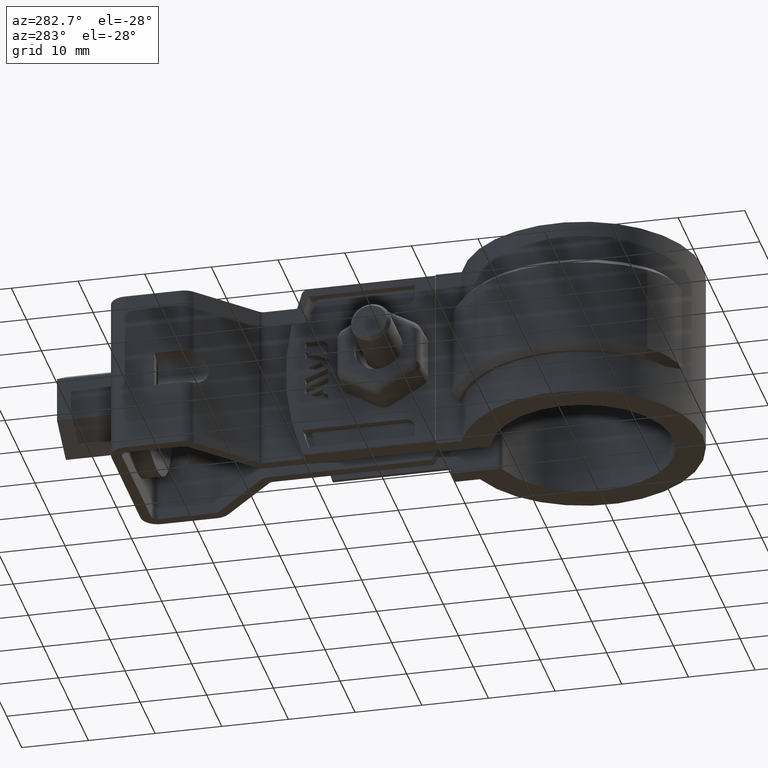
[diagram: clean part render]
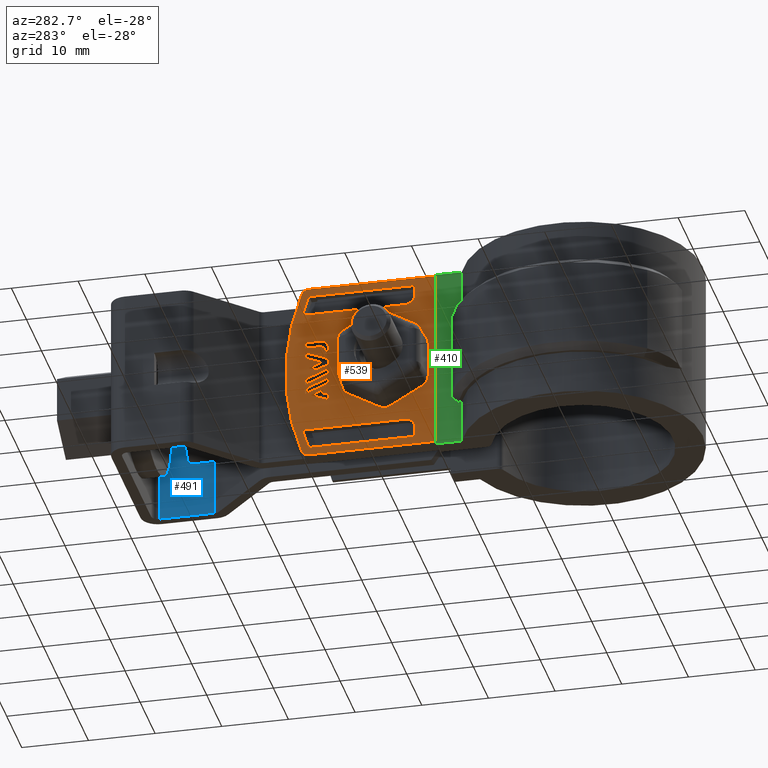
[diagram: same view with three faces highlighted in distinct colors, each labeled with its STEP entity id]
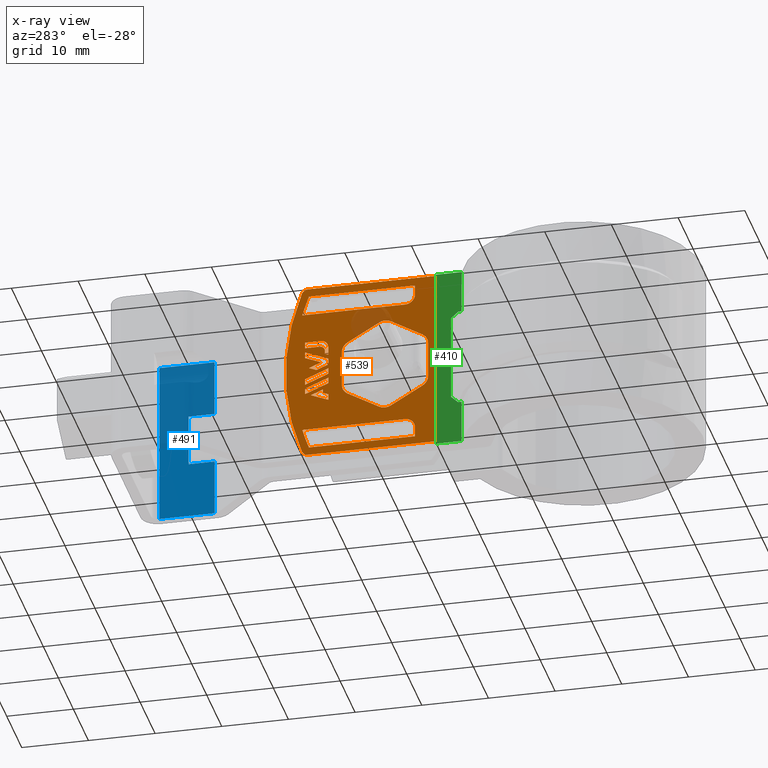
[diagram: x-ray of the same camera — body ghosted, the three highlighted faces saturated]
A machine part, auxiliary view with three faces highlighted in distinct colors.
The next image is the same camera in x-ray (body ghosted, the three faces saturated) — at least one of them is partly hidden behind the body in this view.
Their STEP definitions:

[orange] entity #539 — the highlighted planar face has unit normal (-1, 0, -0).
#539 = ADVANCED_FACE( '', ( #1070, #1071, #1072, #1073, #1074, #1075, #1076, #1077, #1078 ), #1079, .T. );
#1070 = FACE_BOUND( '', #2151, .T. );
#1071 = FACE_BOUND( '', #2152, .T. );
#1072 = FACE_BOUND( '', #2153, .T. );
#1073 = FACE_OUTER_BOUND( '', #2154, .T. );
#1074 = FACE_BOUND( '', #2155, .T. );
#1075 = FACE_BOUND( '', #2156, .T. );
#1076 = FACE_BOUND( '', #2157, .T. );
#1077 = FACE_BOUND( '', #2158, .T. );
#1078 = FACE_BOUND( '', #2159, .T. );
#1079 = PLANE( '', #2160 );
#2151 = EDGE_LOOP( '', ( #4816, #4817, #4818, #4819, #4820 ) );
#2152 = EDGE_LOOP( '', ( #4821, #4822, #4823, #4824 ) );
#2153 = EDGE_LOOP( '', ( #4825, #4826, #4827, #4828, #4829, #4830, #4831, #4832, #4833, #4834, #4835, #4836 ) );
#2154 = EDGE_LOOP( '', ( #4837, #4838, #4839, #4840, #4841, #4842 ) );
#2155 = EDGE_LOOP( '', ( #4843, #4844, #4845, #4846, #4847 ) );
#2156 = EDGE_LOOP( '', ( #4848, #4849, #4850, #4851, #4852 ) );
#2157 = EDGE_LOOP( '', ( #4853, #4854, #4855, #4856, #4857, #4858, #4859, #4860, #4861, #4862, #4863, #4864, #4865, #4866, #4867, #4868, #4869, #4870, #4871, #4872, #4873, #4874, #4875, #4876, #4877, #4878, #4879, #4880, #4881, #4882, #4883, #4884, #4885, #4886, #4887, #4888, #4889, #4890, #4891, #4892 ) );
#2158 = EDGE_LOOP( '', ( #4893, #4894, #4895, #4896, #4897, #4898, #4899 ) );
#2159 = EDGE_LOOP( '', ( #4900, #4901, #4902, #4903 ) );
#2160 = AXIS2_PLACEMENT_3D( '', #4904, #4905, #4906 );
#4816 = ORIENTED_EDGE( '', *, *, #6562, .T. );
#4817 = ORIENTED_EDGE( '', *, *, #6563, .T. );
#4818 = ORIENTED_EDGE( '', *, *, #6564, .T. );
#4819 = ORIENTED_EDGE( '', *, *, #6565, .T. );
#4820 = ORIENTED_EDGE( '', *, *, #6566, .T. );
#4821 = ORIENTED_EDGE( '', *, *, #6567, .T. );
#4822 = ORIENTED_EDGE( '', *, *, #6568, .T. );
#4823 = ORIENTED_EDGE( '', *, *, #6569, .T. );
#4824 = ORIENTED_EDGE( '', *, *, #6570, .T. );
#4825 = ORIENTED_EDGE( '', *, *, #6571, .F. );
#4826 = ORIENTED_EDGE( '', *, *, #6572, .F. );
#4827 = ORIENTED_EDGE( '', *, *, #6573, .F. );
#4828 = ORIENTED_EDGE( '', *, *, #6574, .F. );
#4829 = ORIENTED_EDGE( '', *, *, #6575, .F. );
#4830 = ORIENTED_EDGE( '', *, *, #6576, .F. );
#4831 = ORIENTED_EDGE( '', *, *, #6577, .F. );
#4832 = ORIENTED_EDGE( '', *, *, #6578, .F. );
#4833 = ORIENTED_EDGE( '', *, *, #6579, .F. );
#4834 = ORIENTED_EDGE( '', *, *, #6580, .F. );
#4835 = ORIENTED_EDGE( '', *, *, #6581, .F. );
#4836 = ORIENTED_EDGE( '', *, *, #6582, .F. );
#4837 = ORIENTED_EDGE( '', *, *, #6583, .T. );
#4838 = ORIENTED_EDGE( '', *, *, #6584, .T. );
#4839 = ORIENTED_EDGE( '', *, *, #6585, .T. );
#4840 = ORIENTED_EDGE( '', *, *, #6586, .T. );
#4841 = ORIENTED_EDGE( '', *, *, #6587, .T. );
#4842 = ORIENTED_EDGE( '', *, *, #6588, .T. );
#4843 = ORIENTED_EDGE( '', *, *, #6589, .F. );
#4844 = ORIENTED_EDGE( '', *, *, #6590, .T. );
#4845 = ORIENTED_EDGE( '', *, *, #6591, .T. );
#4846 = ORIENTED_EDGE( '', *, *, #6592, .T. );
#4847 = ORIENTED_EDGE( '', *, *, #6593, .F. );
#4848 = ORIENTED_EDGE( '', *, *, #6594, .F. );
#4849 = ORIENTED_EDGE( '', *, *, #6595, .F. );
#4850 = ORIENTED_EDGE( '', *, *, #6596, .T. );
#4851 = ORIENTED_EDGE( '', *, *, #6597, .T. );
#4852 = ORIENTED_EDGE( '', *, *, #6598, .T. );
#4853 = ORIENTED_EDGE( '', *, *, #6599, .T. );
#4854 = ORIENTED_EDGE( '', *, *, #6600, .T. );
#4855 = ORIENTED_EDGE( '', *, *, #6601, .T. );
#4856 = ORIENTED_EDGE( '', *, *, #6602, .T. );
#4857 = ORIENTED_EDGE( '', *, *, #6603, .T. );
#4858 = ORIENTED_EDGE( '', *, *, #6604, .T. );
#4859 = ORIENTED_EDGE( '', *, *, #6605, .T. );
#4860 = ORIENTED_EDGE( '', *, *, #6606, .T. );
#4861 = ORIENTED_EDGE( '', *, *, #6607, .T. );
#4862 = ORIENTED_EDGE( '', *, *, #6608, .T. );
#4863 = ORIENTED_EDGE( '', *, *, #6609, .T. );
#4864 = ORIENTED_EDGE( '', *, *, #6610, .T. );
#4865 = ORIENTED_EDGE( '', *, *, #6611, .T. );
#4866 = ORIENTED_EDGE( '', *, *, #6612, .T. );
#4867 = ORIENTED_EDGE( '', *, *, #6613, .T. );
#4868 = ORIENTED_EDGE( '', *, *, #6614, .T. );
#4869 = ORIENTED_EDGE( '', *, *, #6615, .T. );
#4870 = ORIENTED_EDGE( '', *, *, #6616, .T. );
#4871 = ORIENTED_EDGE( '', *, *, #6617, .T. );
#4872 = ORIENTED_EDGE( '', *, *, #6618, .T. );
#4873 = ORIENTED_EDGE( '', *, *, #6619, .T. );
#4874 = ORIENTED_EDGE( '', *, *, #6620, .T. );
#4875 = ORIENTED_EDGE( '', *, *, #6621, .T. );
#4876 = ORIENTED_EDGE( '', *, *, #6622, .T. );
#4877 = ORIENTED_EDGE( '', *, *, #6623, .T. );
#4878 = ORIENTED_EDGE( '', *, *, #6624, .T. );
#4879 = ORIENTED_EDGE( '', *, *, #6625, .T. );
#4880 = ORIENTED_EDGE( '', *, *, #6626, .T. );
#4881 = ORIENTED_EDGE( '', *, *, #6627, .T. );
#4882 = ORIENTED_EDGE( '', *, *, #6628, .T. );
#4883 = ORIENTED_EDGE( '', *, *, #6629, .T. );
#4884 = ORIENTED_EDGE( '', *, *, #6630, .T. );
#4885 = ORIENTED_EDGE( '', *, *, #6631, .T. );
#4886 = ORIENTED_EDGE( '', *, *, #6632, .T. );
#4887 = ORIENTED_EDGE( '', *, *, #6633, .T. );
#4888 = ORIENTED_EDGE( '', *, *, #6634, .T. );
#4889 = ORIENTED_EDGE( '', *, *, #6635, .T. );
#4890 = ORIENTED_EDGE( '', *, *, #6636, .T. );
#4891 = ORIENTED_EDGE( '', *, *, #6637, .T. );
#4892 = ORIENTED_EDGE( '', *, *, #6638, .T. );
#4893 = ORIENTED_EDGE( '', *, *, #6639, .T. );
#4894 = ORIENTED_EDGE( '', *, *, #6640, .T. );
#4895 = ORIENTED_EDGE( '', *, *, #6641, .T. );
#4896 = ORIENTED_EDGE( '', *, *, #6642, .T. );
#4897 = ORIENTED_EDGE( '', *, *, #6643, .T. );
#4898 = ORIENTED_EDGE( '', *, *, #6644, .T. );
#4899 = ORIENTED_EDGE( '', *, *, #6645, .T. );
#4900 = ORIENTED_EDGE( '', *, *, #6646, .T. );
#4901 = ORIENTED_EDGE( '', *, *, #6647, .T. );
#4902 = ORIENTED_EDGE( '', *, *, #6558, .T. );
#4903 = ORIENTED_EDGE( '', *, *, #6561, .T. );
#4904 = CARTESIAN_POINT( '', ( -6.30000000000003, 6.82194656581947, -12.5000000000001 ) );
#4905 = DIRECTION( '', ( -1.00000000000000, 7.94615700011737E-017, -6.23565794846549E-020 ) );
#4906 = DIRECTION( '', ( 7.94615700011737E-017, 1.00000000000000, 1.27307474615306E-016 ) );
#6558 = EDGE_CURVE( '', #7891, #7889, #7892, .T. );
#6561 = EDGE_CURVE( '', #7889, #7894, #7896, .T. );
#6562 = EDGE_CURVE( '', #7897, #7898, #7899, .T. );
#6563 = EDGE_CURVE( '', #7898, #7900, #7901, .T. );
#6564 = EDGE_CURVE( '', #7900, #7902, #7903, .T. );
#6565 = EDGE_CURVE( '', #7902, #7904, #7905, .T. );
#6566 = EDGE_CURVE( '', #7904, #7897, #7906, .T. );
#6567 = EDGE_CURVE( '', #7907, #7908, #7909, .T. );
#6568 = EDGE_CURVE( '', #7908, #7910, #7911, .T. );
#6569 = EDGE_CURVE( '', #7910, #7912, #7913, .T. );
#6570 = EDGE_CURVE( '', #7912, #7907, #7914, .T. );
#6571 = EDGE_CURVE( '', #7915, #7916, #7917, .F. );
#6572 = EDGE_CURVE( '', #7918, #7915, #7919, .T. );
#6573 = EDGE_CURVE( '', #7920, #7918, #7921, .F. );
#6574 = EDGE_CURVE( '', #7922, #7920, #7923, .T. );
#6575 = EDGE_CURVE( '', #7924, #7922, #7925, .F. );
#6576 = EDGE_CURVE( '', #7926, #7924, #7927, .T. );
#6577 = EDGE_CURVE( '', #7928, #7926, #7929, .F. );
#6578 = EDGE_CURVE( '', #7930, #7928, #7931, .T. );
#6579 = EDGE_CURVE( '', #7932, #7930, #7933, .F. );
#6580 = EDGE_CURVE( '', #7934, #7932, #7935, .T. );
#6581 = EDGE_CURVE( '', #7936, #7934, #7937, .F. );
#6582 = EDGE_CURVE( '', #7916, #7936, #7938, .T. );
#6583 = EDGE_CURVE( '', #7939, #7940, #7941, .T. );
#6584 = EDGE_CURVE( '', #7940, #7942, #7943, .T. );
#6585 = EDGE_CURVE( '', #7942, #7944, #7945, .T. );
#6586 = EDGE_CURVE( '', #7944, #7946, #7947, .T. );
#6587 = EDGE_CURVE( '', #7946, #7948, #7949, .T. );
#6588 = EDGE_CURVE( '', #7948, #7939, #7950, .T. );
#6589 = EDGE_CURVE( '', #7951, #7952, #7953, .T. );
#6590 = EDGE_CURVE( '', #7951, #7954, #7955, .T. );
#6591 = EDGE_CURVE( '', #7954, #7956, #7957, .T. );
#6592 = EDGE_CURVE( '', #7956, #7958, #7959, .T. );
#6593 = EDGE_CURVE( '', #7952, #7958, #7960, .T. );
#6594 = EDGE_CURVE( '', #7961, #7962, #7963, .T. );
#6595 = EDGE_CURVE( '', #7964, #7961, #7965, .T. );
#6596 = EDGE_CURVE( '', #7964, #7966, #7967, .T. );
#6597 = EDGE_CURVE( '', #7966, #7968, #7969, .T. );
#6598 = EDGE_CURVE( '', #7968, #7962, #7970, .T. );
#6599 = EDGE_CURVE( '', #7971, #7972, #7973, .T. );
#6600 = EDGE_CURVE( '', #7972, #7974, #7975, .T. );
#6601 = EDGE_CURVE( '', #7974, #7976, #7977, .T. );
#6602 = EDGE_CURVE( '', #7976, #7978, #7979, .T. );
#6603 = EDGE_CURVE( '', #7978, #7980, #7981, .T. );
#6604 = EDGE_CURVE( '', #7980, #7982, #7983, .T. );
#6605 = EDGE_CURVE( '', #7982, #7984, #7985, .T. );
#6606 = EDGE_CURVE( '', #7984, #7986, #7987, .T. );
#6607 = EDGE_CURVE( '', #7986, #7988, #7989, .T. );
#6608 = EDGE_CURVE( '', #7988, #7990, #7991, .T. );
#6609 = EDGE_CURVE( '', #7990, #7992, #7993, .T. );
#6610 = EDGE_CURVE( '', #7992, #7994, #7995, .T. );
#6611 = EDGE_CURVE( '', #7994, #7996, #7997, .T. );
#6612 = EDGE_CURVE( '', #7996, #7998, #7999, .T. );
#6613 = EDGE_CURVE( '', #7998, #8000, #8001, .T. );
#6614 = EDGE_CURVE( '', #8000, #8002, #8003, .T. );
#6615 = EDGE_CURVE( '', #8002, #8004, #8005, .T. );
#6616 = EDGE_CURVE( '', #8004, #8006, #8007, .T. );
#6617 = EDGE_CURVE( '', #8006, #8008, #8009, .T. );
#6618 = EDGE_CURVE( '', #8008, #8010, #8011, .T. );
#6619 = EDGE_CURVE( '', #8010, #8012, #8013, .T. );
#6620 = EDGE_CURVE( '', #8012, #8014, #8015, .T. );
#6621 = EDGE_CURVE( '', #8014, #8016, #8017, .T. );
#6622 = EDGE_CURVE( '', #8016, #8018, #8019, .T. );
#6623 = EDGE_CURVE( '', #8018, #8020, #8021, .T. );
#6624 = EDGE_CURVE( '', #8020, #8022, #8023, .T. );
#6625 = EDGE_CURVE( '', #8022, #8024, #8025, .T. );
#6626 = EDGE_CURVE( '', #8024, #8026, #8027, .T. );
#6627 = EDGE_CURVE( '', #8026, #8028, #8029, .T. );
#6628 = EDGE_CURVE( '', #8028, #8030, #8031, .T. );
#6629 = EDGE_CURVE( '', #8030, #8032, #8033, .T. );
#6630 = EDGE_CURVE( '', #8032, #8034, #8035, .T. );
#6631 = EDGE_CURVE( '', #8034, #8036, #8037, .T. );
#6632 = EDGE_CURVE( '', #8036, #8038, #8039, .T. );
#6633 = EDGE_CURVE( '', #8038, #8040, #8041, .T. );
#6634 = EDGE_CURVE( '', #8040, #8042, #8043, .T. );
#6635 = EDGE_CURVE( '', #8042, #8044, #8045, .T. );
#6636 = EDGE_CURVE( '', #8044, #8046, #8047, .T. );
#6637 = EDGE_CURVE( '', #8046, #8048, #8049, .T. );
#6638 = EDGE_CURVE( '', #8048, #7971, #8050, .F. );
#6639 = EDGE_CURVE( '', #8051, #8052, #8053, .T. );
#6640 = EDGE_CURVE( '', #8052, #8054, #8055, .T. );
#6641 = EDGE_CURVE( '', #8054, #8056, #8057, .T. );
#6642 = EDGE_CURVE( '', #8056, #8058, #8059, .T. );
#6643 = EDGE_CURVE( '', #8058, #8060, #8061, .T. );
#6644 = EDGE_CURVE( '', #8060, #8062, #8063, .T. );
#6645 = EDGE_CURVE( '', #8062, #8051, #8064, .T. );
#6646 = EDGE_CURVE( '', #7894, #8065, #8066, .T. );
#6647 = EDGE_CURVE( '', #8065, #7891, #8067, .T. );
#7889 = VERTEX_POINT( '', #11145 );
#7891 = VERTEX_POINT( '', #11148 );
#7892 = LINE( '', #11149, #11150 );
#7894 = VERTEX_POINT( '', #11153 );
#7896 = LINE( '', #11156, #11157 );
#7897 = VERTEX_POINT( '', #11158 );
#7898 = VERTEX_POINT( '', #11159 );
#7899 = LINE( '', #11160, #11161 );
#7900 = VERTEX_POINT( '', #11162 );
#7901 = LINE( '', #11163, #11164 );
#7902 = VERTEX_POINT( '', #11165 );
#7903 = LINE( '', #11166, #11167 );
#7904 = VERTEX_POINT( '', #11168 );
#7905 = LINE( '', #11169, #11170 );
#7906 = LINE( '', #11171, #11172 );
#7907 = VERTEX_POINT( '', #11173 );
#7908 = VERTEX_POINT( '', #11174 );
#7909 = LINE( '', #11175, #11176 );
#7910 = VERTEX_POINT( '', #11177 );
#7911 = LINE( '', #11178, #11179 );
#7912 = VERTEX_POINT( '', #11180 );
#7913 = LINE( '', #11181, #11182 );
#7914 = LINE( '', #11183, #11184 );
#7915 = VERTEX_POINT( '', #11185 );
#7916 = VERTEX_POINT( '', #11186 );
#7917 = LINE( '', #11187, #11188 );
#7918 = VERTEX_POINT( '', #11189 );
#7919 = CIRCLE( '', #11190, 1.77252045227181 );
#7920 = VERTEX_POINT( '', #11191 );
#7921 = LINE( '', #11192, #11193 );
#7922 = VERTEX_POINT( '', #11194 );
#7923 = CIRCLE( '', #11195, 1.77252045227181 );
#7924 = VERTEX_POINT( '', #11196 );
#7925 = LINE( '', #11197, #11198 );
#7926 = VERTEX_POINT( '', #11199 );
#7927 = CIRCLE( '', #11200, 1.77252045227182 );
#7928 = VERTEX_POINT( '', #11201 );
#7929 = LINE( '', #11202, #11203 );
#7930 = VERTEX_POINT( '', #11204 );
#7931 = CIRCLE( '', #11205, 1.77252045227182 );
#7932 = VERTEX_POINT( '', #11206 );
#7933 = LINE( '', #11207, #11208 );
#7934 = VERTEX_POINT( '', #11209 );
#7935 = CIRCLE( '', #11210, 1.77252045227181 );
#7936 = VERTEX_POINT( '', #11211 );
#7937 = LINE( '', #11212, #11213 );
#7938 = CIRCLE( '', #11214, 1.77252045227182 );
#7939 = VERTEX_POINT( '', #11215 );
#7940 = VERTEX_POINT( '', #11216 );
#7941 = CIRCLE( '', #11217, 1.00000000000000 );
#7942 = VERTEX_POINT( '', #11218 );
#7943 = LINE( '', #11219, #11220 );
#7944 = VERTEX_POINT( '', #11221 );
#7945 = LINE( '', #11222, #11223 );
#7946 = VERTEX_POINT( '', #11224 );
#7947 = LINE( '', #11225, #11226 );
#7948 = VERTEX_POINT( '', #11227 );
#7949 = CIRCLE( '', #11228, 1.00000000000000 );
#7950 = CIRCLE( '', #11229, 36.4000000000000 );
#7951 = VERTEX_POINT( '', #11230 );
#7952 = VERTEX_POINT( '', #11231 );
#7953 = CIRCLE( '', #11232, 35.2000000000000 );
#7954 = VERTEX_POINT( '', #11233 );
#7955 = LINE( '', #11234, #11235 );
#7956 = VERTEX_POINT( '', #11236 );
#7957 = CIRCLE( '', #11237, 1.50000000000000 );
#7958 = VERTEX_POINT( '', #11238 );
#7959 = LINE( '', #11239, #11240 );
#7960 = LINE( '', #11241, #11242 );
#7961 = VERTEX_POINT( '', #11243 );
#7962 = VERTEX_POINT( '', #11244 );
#7963 = CIRCLE( '', #11245, 35.2000000000000 );
#7964 = VERTEX_POINT( '', #11246 );
#7965 = LINE( '', #11247, #11248 );
#7966 = VERTEX_POINT( '', #11249 );
#7967 = LINE( '', #11250, #11251 );
#7968 = VERTEX_POINT( '', #11252 );
#7969 = CIRCLE( '', #11253, 1.50000000000000 );
#7970 = LINE( '', #11254, #11255 );
#7971 = VERTEX_POINT( '', #11256 );
#7972 = VERTEX_POINT( '', #11257 );
#7973 = LINE( '', #11258, #11259 );
#7974 = VERTEX_POINT( '', #11260 );
#7975 = LINE( '', #11261, #11262 );
#7976 = VERTEX_POINT( '', #11263 );
#7977 = LINE( '', #11264, #11265 );
#7978 = VERTEX_POINT( '', #11266 );
#7979 = LINE( '', #11267, #11268 );
#7980 = VERTEX_POINT( '', #11269 );
#7981 = LINE( '', #11270, #11271 );
#7982 = VERTEX_POINT( '', #11272 );
#7983 = LINE( '', #11273, #11274 );
#7984 = VERTEX_POINT( '', #11275 );
#7985 = LINE( '', #11276, #11277 );
#7986 = VERTEX_POINT( '', #11278 );
#7987 = LINE( '', #11279, #11280 );
#7988 = VERTEX_POINT( '', #11281 );
#7989 = LINE( '', #11282, #11283 );
#7990 = VERTEX_POINT( '', #11284 );
#7991 = LINE( '', #11285, #11286 );
#7992 = VERTEX_POINT( '', #11287 );
#7993 = LINE( '', #11288, #11289 );
#7994 = VERTEX_POINT( '', #11290 );
#7995 = LINE( '', #11291, #11292 );
#7996 = VERTEX_POINT( '', #11293 );
#7997 = LINE( '', #11294, #11295 );
#7998 = VERTEX_POINT( '', #11296 );
#7999 = LINE( '', #11297, #11298 );
#8000 = VERTEX_POINT( '', #11299 );
#8001 = LINE( '', #11300, #11301 );
#8002 = VERTEX_POINT( '', #11302 );
#8003 = LINE( '', #11303, #11304 );
#8004 = VERTEX_POINT( '', #11305 );
#8005 = LINE( '', #11306, #11307 );
#8006 = VERTEX_POINT( '', #11308 );
#8007 = LINE( '', #11309, #11310 );
#8008 = VERTEX_POINT( '', #11311 );
#8009 = LINE( '', #11312, #11313 );
#8010 = VERTEX_POINT( '', #11314 );
#8011 = LINE( '', #11315, #11316 );
#8012 = VERTEX_POINT( '', #11317 );
#8013 = LINE( '', #11318, #11319 );
#8014 = VERTEX_POINT( '', #11320 );
#8015 = LINE( '', #11321, #11322 );
#8016 = VERTEX_POINT( '', #11323 );
#8017 = LINE( '', #11324, #11325 );
#8018 = VERTEX_POINT( '', #11326 );
#8019 = LINE( '', #11327, #11328 );
#8020 = VERTEX_POINT( '', #11329 );
#8021 = LINE( '', #11330, #11331 );
#8022 = VERTEX_POINT( '', #11332 );
#8023 = LINE( '', #11333, #11334 );
#8024 = VERTEX_POINT( '', #11335 );
#8025 = LINE( '', #11336, #11337 );
#8026 = VERTEX_POINT( '', #11338 );
#8027 = LINE( '', #11339, #11340 );
#8028 = VERTEX_POINT( '', #11341 );
#8029 = LINE( '', #11342, #11343 );
#8030 = VERTEX_POINT( '', #11344 );
#8031 = LINE( '', #11345, #11346 );
#8032 = VERTEX_POINT( '', #11347 );
#8033 = LINE( '', #11348, #11349 );
#8034 = VERTEX_POINT( '', #11350 );
#8035 = LINE( '', #11351, #11352 );
#8036 = VERTEX_POINT( '', #11353 );
#8037 = LINE( '', #11354, #11355 );
#8038 = VERTEX_POINT( '', #11356 );
#8039 = LINE( '', #11357, #11358 );
#8040 = VERTEX_POINT( '', #11359 );
#8041 = LINE( '', #11360, #11361 );
#8042 = VERTEX_POINT( '', #11362 );
#8043 = LINE( '', #11363, #11364 );
#8044 = VERTEX_POINT( '', #11365 );
#8045 = LINE( '', #11366, #11367 );
#8046 = VERTEX_POINT( '', #11368 );
#8047 = LINE( '', #11369, #11370 );
#8048 = VERTEX_POINT( '', #11371 );
#8049 = LINE( '', #11372, #11373 );
#8050 = CIRCLE( '', #11374, 1.16712912069193 );
#8051 = VERTEX_POINT( '', #11375 );
#8052 = VERTEX_POINT( '', #11376 );
#8053 = LINE( '', #11377, #11378 );
#8054 = VERTEX_POINT( '', #11379 );
#8055 = LINE( '', #11380, #11381 );
#8056 = VERTEX_POINT( '', #11382 );
#8057 = LINE( '', #11383, #11384 );
#8058 = VERTEX_POINT( '', #11385 );
#8059 = LINE( '', #11386, #11387 );
#8060 = VERTEX_POINT( '', #11388 );
#8061 = LINE( '', #11389, #11390 );
#8062 = VERTEX_POINT( '', #11391 );
#8063 = LINE( '', #11392, #11393 );
#8064 = LINE( '', #11394, #11395 );
#8065 = VERTEX_POINT( '', #11396 );
#8066 = LINE( '', #11397, #11398 );
#8067 = LINE( '', #11399, #11400 );
#11145 = CARTESIAN_POINT( '', ( -6.30000000000003, 40.3240775025942, -16.0992186100001 ) );
#11148 = CARTESIAN_POINT( '', ( -6.30000000000003, 36.8256386785941, -14.6858050040001 ) );
#11149 = CARTESIAN_POINT( '', ( -6.30000000000003, 10.2729492232332, -3.95818207269807 ) );
#11150 = VECTOR( '', #12717, 1000.00000000000 );
#11153 = CARTESIAN_POINT( '', ( -6.30000000000003, 40.3240775025942, -15.1954619120001 ) );
#11156 = CARTESIAN_POINT( '', ( -6.30000000000003, 40.3240775025942, -12.5000000000001 ) );
#11157 = VECTOR( '', #12720, 1000.00000000000 );
#11158 = CARTESIAN_POINT( '', ( -6.30000000000003, 37.6336445825941, -15.6427310000001 ) );
#11159 = CARTESIAN_POINT( '', ( -6.30000000000003, 37.6336445825941, -16.2049013520001 ) );
#11160 = CARTESIAN_POINT( '', ( -6.30000000000003, 37.6336445825941, -12.5000000000001 ) );
#11161 = VECTOR( '', #12721, 1000.00000000000 );
#11162 = CARTESIAN_POINT( '', ( -6.30000000000003, 36.8256386785941, -16.5315944440001 ) );
#11163 = CARTESIAN_POINT( '', ( -6.30000000000003, 12.4386584504484, -26.3917426630107 ) );
#11164 = VECTOR( '', #12722, 1000.00000000000 );
#11165 = CARTESIAN_POINT( '', ( -6.30000000000003, 36.8256386785941, -17.4353519200001 ) );
#11166 = CARTESIAN_POINT( '', ( -6.30000000000003, 36.8256386785941, -12.5000000000001 ) );
#11167 = VECTOR( '', #12723, 1000.00000000000 );
#11168 = CARTESIAN_POINT( '', ( -6.30000000000003, 39.4486757925941, -16.3757128080001 ) );
#11169 = CARTESIAN_POINT( '', ( -6.30000000000003, 12.7454668365893, -27.1631181690099 ) );
#11170 = VECTOR( '', #12724, 1000.00000000000 );
#11171 = CARTESIAN_POINT( '', ( -6.30000000000003, 10.0511252232941, -4.50381239750712 ) );
#11172 = VECTOR( '', #12725, 1000.00000000000 );
#11173 = CARTESIAN_POINT( '', ( -6.30000000000003, 40.3240775025942, -14.5449628860001 ) );
#11174 = CARTESIAN_POINT( '', ( -6.30000000000003, 40.3240775025942, -13.6409432240001 ) );
#11175 = CARTESIAN_POINT( '', ( -6.30000000000003, 40.3240775025942, -12.5000000000001 ) );
#11176 = VECTOR( '', #12726, 1000.00000000000 );
#11177 = CARTESIAN_POINT( '', ( -6.30000000000003, 36.8256386785941, -12.2273304500001 ) );
#11178 = CARTESIAN_POINT( '', ( -6.30000000000003, 11.1278582450275, -1.84363860576129 ) );
#11179 = VECTOR( '', #12727, 1000.00000000000 );
#11180 = CARTESIAN_POINT( '', ( -6.30000000000003, 36.8256386785941, -13.1313508900001 ) );
#11181 = CARTESIAN_POINT( '', ( -6.30000000000003, 36.8256386785941, -12.5000000000001 ) );
#11182 = VECTOR( '', #12728, 1000.00000000000 );
#11183 = CARTESIAN_POINT( '', ( -6.30000000000003, 10.8138374178529, -2.62077856056619 ) );
#11184 = VECTOR( '', #12729, 1000.00000000000 );
#11185 = CARTESIAN_POINT( '', ( -6.30000000000003, 34.7944670180912, -9.78645373480883 ) );
#11186 = CARTESIAN_POINT( '', ( -6.30000000000003, 34.7944670180912, -15.2135462651913 ) );
#11187 = CARTESIAN_POINT( '', ( -6.30000000000003, 34.7944670180912, -15.2135462651913 ) );
#11188 = VECTOR( '', #12730, 1000.00000000000 );
#11189 = CARTESIAN_POINT( '', ( -6.30000000000003, 33.9082067919553, -8.25140599441396 ) );
#11190 = AXIS2_PLACEMENT_3D( '', #12731, #12732, #12733 );
#11191 = CARTESIAN_POINT( '', ( -6.30000000000003, 29.2082067919553, -5.53785972922273 ) );
#11192 = CARTESIAN_POINT( '', ( -6.30000000000003, 36.2582067919553, -9.60817912700957 ) );
#11193 = VECTOR( '', #12734, 1000.00000000000 );
#11194 = CARTESIAN_POINT( '', ( -6.30000000000003, 27.4356863396835, -5.53785972922272 ) );
#11195 = AXIS2_PLACEMENT_3D( '', #12735, #12736, #12737 );
#11196 = CARTESIAN_POINT( '', ( -6.30000000000003, 22.7356863396835, -8.25140599441396 ) );
#11197 = CARTESIAN_POINT( '', ( -6.30000000000003, 27.4356863396835, -5.53785972922272 ) );
#11198 = VECTOR( '', #12738, 1000.00000000000 );
#11199 = CARTESIAN_POINT( '', ( -6.30000000000003, 21.8494261135476, -9.78645373480884 ) );
#11200 = AXIS2_PLACEMENT_3D( '', #12739, #12740, #12741 );
#11201 = CARTESIAN_POINT( '', ( -6.30000000000003, 21.8494261135476, -15.2135462651913 ) );
#11202 = CARTESIAN_POINT( '', ( -6.30000000000003, 21.8494261135476, -15.2135462651913 ) );
#11203 = VECTOR( '', #12742, 1000.00000000000 );
#11204 = CARTESIAN_POINT( '', ( -6.30000000000003, 22.7356863396835, -16.7485940055862 ) );
#11205 = AXIS2_PLACEMENT_3D( '', #12743, #12744, #12745 );
#11206 = CARTESIAN_POINT( '', ( -6.30000000000003, 27.4356863396835, -19.4621402707774 ) );
#11207 = CARTESIAN_POINT( '', ( -6.30000000000003, 29.7856863396835, -20.8189134033730 ) );
#11208 = VECTOR( '', #12746, 1000.00000000000 );
#11209 = CARTESIAN_POINT( '', ( -6.30000000000003, 29.2082067919553, -19.4621402707774 ) );
#11210 = AXIS2_PLACEMENT_3D( '', #12747, #12748, #12749 );
#11211 = CARTESIAN_POINT( '', ( -6.30000000000003, 33.9082067919553, -16.7485940055862 ) );
#11212 = CARTESIAN_POINT( '', ( -6.30000000000003, 33.9082067919553, -16.7485940055862 ) );
#11213 = VECTOR( '', #12750, 1000.00000000000 );
#11214 = AXIS2_PLACEMENT_3D( '', #12751, #12752, #12753 );
#11215 = CARTESIAN_POINT( '', ( -6.30000000000003, 40.7988337686200, -25.5587570621470 ) );
#11216 = CARTESIAN_POINT( '', ( -6.30000000000003, 39.8654028015101, -26.2000000000001 ) );
#11217 = AXIS2_PLACEMENT_3D( '', #12754, #12755, #12756 );
#11218 = CARTESIAN_POINT( '', ( -6.30000000000003, 20.8219465658195, -26.2000000000001 ) );
#11219 = CARTESIAN_POINT( '', ( -6.30000000000003, 23.8219465658195, -26.2000000000001 ) );
#11220 = VECTOR( '', #12757, 1000.00000000000 );
#11221 = CARTESIAN_POINT( '', ( -6.30000000000003, 20.8219465658195, 1.19999999999988 ) );
#11222 = CARTESIAN_POINT( '', ( -6.30000000000003, 20.8219465658195, -26.2000000000001 ) );
#11223 = VECTOR( '', #12758, 1000.00000000000 );
#11224 = CARTESIAN_POINT( '', ( -6.30000000000003, 39.8654028015101, 1.19999999999991 ) );
#11225 = CARTESIAN_POINT( '', ( -6.30000000000003, 20.8219465658195, 1.19999999999990 ) );
#11226 = VECTOR( '', #12759, 1000.00000000000 );
#11227 = CARTESIAN_POINT( '', ( -6.30000000000003, 40.7988337686200, 0.558757062146803 ) );
#11228 = AXIS2_PLACEMENT_3D( '', #12760, #12761, #12762 );
#11229 = AXIS2_PLACEMENT_3D( '', #12763, #12764, #12765 );
#11230 = CARTESIAN_POINT( '', ( -6.30000000000003, 40.7157513094596, -22.0000000000001 ) );
#11231 = CARTESIAN_POINT( '', ( -6.30000000000003, 39.7277211350345, -25.0000000000001 ) );
#11232 = AXIS2_PLACEMENT_3D( '', #12766, #12767, #12768 );
#11233 = CARTESIAN_POINT( '', ( -6.30000000000003, 25.3219465658195, -22.0000000000001 ) );
#11234 = CARTESIAN_POINT( '', ( -6.30000000000003, 41.5458576358588, -22.0000000000001 ) );
#11235 = VECTOR( '', #12769, 1000.00000000000 );
#11236 = CARTESIAN_POINT( '', ( -6.30000000000003, 23.8219465658195, -23.5000000000001 ) );
#11237 = AXIS2_PLACEMENT_3D( '', #12770, #12771, #12772 );
#11238 = CARTESIAN_POINT( '', ( -6.30000000000003, 23.8219465658195, -25.0000000000001 ) );
#11239 = CARTESIAN_POINT( '', ( -6.30000000000003, 23.8219465658195, -23.5000000000001 ) );
#11240 = VECTOR( '', #12773, 1000.00000000000 );
#11241 = CARTESIAN_POINT( '', ( -6.30000000000003, 39.5136886423745, -25.0000000000001 ) );
#11242 = VECTOR( '', #12774, 1000.00000000000 );
#11243 = CARTESIAN_POINT( '', ( -6.30000000000003, 39.7277211350345, -8.92319776766368E-014 ) );
#11244 = CARTESIAN_POINT( '', ( -6.30000000000003, 40.7157513094596, -3.00000000000009 ) );
#11245 = AXIS2_PLACEMENT_3D( '', #12775, #12776, #12777 );
#11246 = CARTESIAN_POINT( '', ( -6.30000000000003, 23.8219465658195, -8.12430943602555E-014 ) );
#11247 = CARTESIAN_POINT( '', ( -6.30000000000003, 20.8219465658195, -8.16767752292497E-014 ) );
#11248 = VECTOR( '', #12778, 1000.00000000000 );
#11249 = CARTESIAN_POINT( '', ( -6.30000000000003, 23.8219465658195, -1.50000000000010 ) );
#11250 = CARTESIAN_POINT( '', ( -6.30000000000003, 23.8219465658195, 1.19999999999989 ) );
#11251 = VECTOR( '', #12779, 1000.00000000000 );
#11252 = CARTESIAN_POINT( '', ( -6.30000000000003, 25.3219465658195, -3.00000000000010 ) );
#11253 = AXIS2_PLACEMENT_3D( '', #12780, #12781, #12782 );
#11254 = CARTESIAN_POINT( '', ( -6.30000000000003, 25.3219465658195, -3.00000000000010 ) );
#11255 = VECTOR( '', #12783, 1000.00000000000 );
#11256 = CARTESIAN_POINT( '', ( -6.30000000000003, 36.8256386857327, -8.74297971174872 ) );
#11257 = CARTESIAN_POINT( '', ( -6.30000000000003, 36.8256386785941, -9.97073444800008 ) );
#11258 = CARTESIAN_POINT( '', ( -6.30000000000003, 36.8256386638881, -12.5000001744516 ) );
#11259 = VECTOR( '', #12784, 1000.00000000000 );
#11260 = CARTESIAN_POINT( '', ( -6.30000000000003, 37.3343783245941, -9.76519073800008 ) );
#11261 = CARTESIAN_POINT( '', ( -6.30000000000003, 10.1538654953900, -20.7468067581854 ) );
#11262 = VECTOR( '', #12785, 1000.00000000000 );
#11263 = CARTESIAN_POINT( '', ( -6.30000000000003, 37.3343783245941, -9.26826424400009 ) );
#11264 = CARTESIAN_POINT( '', ( -6.30000000000003, 37.3343783245941, -12.5000000000001 ) );
#11265 = VECTOR( '', #12786, 1000.00000000000 );
#11266 = CARTESIAN_POINT( '', ( -6.30000000000003, 37.3350754125942, -9.23547076600008 ) );
#11267 = CARTESIAN_POINT( '', ( -6.30000000000003, 37.2519316318146, -13.1468474441683 ) );
#11268 = VECTOR( '', #12787, 1000.00000000000 );
#11269 = CARTESIAN_POINT( '', ( -6.30000000000003, 37.3371588965942, -9.20269440400009 ) );
#11270 = CARTESIAN_POINT( '', ( -6.30000000000003, 37.0055964764051, -14.4186739410087 ) );
#11271 = VECTOR( '', #12788, 1000.00000000000 );
#11272 = CARTESIAN_POINT( '', ( -6.30000000000003, 37.3406178845941, -9.17002851800009 ) );
#11273 = CARTESIAN_POINT( '', ( -6.30000000000003, 36.6535157919146, -15.6588624283455 ) );
#11274 = VECTOR( '', #12789, 1000.00000000000 );
#11275 = CARTESIAN_POINT( '', ( -6.30000000000003, 37.3454407065941, -9.13756569000008 ) );
#11276 = CARTESIAN_POINT( '', ( -6.30000000000003, 36.1975421747579, -16.8641690356071 ) );
#11277 = VECTOR( '', #12790, 1000.00000000000 );
#11278 = CARTESIAN_POINT( '', ( -6.30000000000003, 37.3516156925941, -9.10540005800007 ) );
#11279 = CARTESIAN_POINT( '', ( -6.30000000000003, 35.6379460164203, -18.0319414579949 ) );
#11280 = VECTOR( '', #12791, 1000.00000000000 );
#11281 = CARTESIAN_POINT( '', ( -6.30000000000003, 37.3605175685941, -9.06837192600009 ) );
#11282 = CARTESIAN_POINT( '', ( -6.30000000000003, 34.9120246858663, -19.2530922773816 ) );
#11283 = VECTOR( '', #12792, 1000.00000000000 );
#11284 = CARTESIAN_POINT( '', ( -6.30000000000003, 37.3712601925941, -9.03175224400008 ) );
#11285 = CARTESIAN_POINT( '', ( -6.30000000000003, 34.0137525515815, -20.4768947088621 ) );
#11286 = VECTOR( '', #12793, 1000.00000000000 );
#11287 = CARTESIAN_POINT( '', ( -6.30000000000003, 37.3837867705941, -8.99566860400008 ) );
#11288 = CARTESIAN_POINT( '', ( -6.30000000000003, 33.0110427929534, -21.5916480886852 ) );
#11289 = VECTOR( '', #12794, 1000.00000000000 );
#11290 = CARTESIAN_POINT( '', ( -6.30000000000003, 37.3980397305941, -8.96024704200008 ) );
#11291 = CARTESIAN_POINT( '', ( -6.30000000000003, 31.9114581715475, -22.5955402626232 ) );
#11292 = VECTOR( '', #12795, 1000.00000000000 );
#11293 = CARTESIAN_POINT( '', ( -6.30000000000003, 37.4139615005941, -8.92561592800008 ) );
#11294 = CARTESIAN_POINT( '', ( -6.30000000000003, 30.7193563385110, -23.4869137330244 ) );
#11295 = VECTOR( '', #12796, 1000.00000000000 );
#11296 = CARTESIAN_POINT( '', ( -6.30000000000003, 37.4314945085941, -8.89190129800009 ) );
#11297 = CARTESIAN_POINT( '', ( -6.30000000000003, 29.4386103782510, -24.2616046077495 ) );
#11298 = VECTOR( '', #12797, 1000.00000000000 );
#11299 = CARTESIAN_POINT( '', ( -6.30000000000003, 37.4505804045941, -8.85923152200008 ) );
#11300 = CARTESIAN_POINT( '', ( -6.30000000000003, 28.0712804574998, -24.9139993101260 ) );
#11301 = VECTOR( '', #12798, 1000.00000000000 );
#11302 = CARTESIAN_POINT( '', ( -6.30000000000003, 37.4713491145942, -8.82742610400008 ) );
#11303 = CARTESIAN_POINT( '', ( -6.30000000000003, 26.6279233264895, -25.4331608724383 ) );
#11304 = VECTOR( '', #12799, 1000.00000000000 );
#11305 = CARTESIAN_POINT( '', ( -6.30000000000003, 37.4936994985941, -8.79662508400008 ) );
#11306 = CARTESIAN_POINT( '', ( -6.30000000000003, 25.1537670213069, -25.8022616328669 ) );
#11307 = VECTOR( '', #12800, 1000.00000000000 );
#11308 = CARTESIAN_POINT( '', ( -6.30000000000003, 37.5175428645941, -8.76692337800008 ) );
#11309 = CARTESIAN_POINT( '', ( -6.30000000000003, 23.6660286110232, -26.0217691919027 ) );
#11310 = VECTOR( '', #12801, 1000.00000000000 );
#11311 = CARTESIAN_POINT( '', ( -6.30000000000003, 37.5427905205941, -8.73841356800008 ) );
#11312 = CARTESIAN_POINT( '', ( -6.30000000000003, 22.1727636176511, -26.0943434292824 ) );
#11313 = VECTOR( '', #12802, 1000.00000000000 );
#11314 = CARTESIAN_POINT( '', ( -6.30000000000003, 37.5693545525941, -8.71119057000008 ) );
#11315 = CARTESIAN_POINT( '', ( -6.30000000000003, 20.6784564681166, -26.0210961134023 ) );
#11316 = VECTOR( '', #12803, 1000.00000000000 );
#11317 = CARTESIAN_POINT( '', ( -6.30000000000003, 37.5971447125942, -8.68534852200008 ) );
#11318 = CARTESIAN_POINT( '', ( -6.30000000000003, 19.1908549461780, -25.8013429475677 ) );
#11319 = VECTOR( '', #12804, 1000.00000000000 );
#11320 = CARTESIAN_POINT( '', ( -6.30000000000003, 37.6260738645942, -8.66098078400008 ) );
#11321 = CARTESIAN_POINT( '', ( -6.30000000000003, 17.7152155497799, -25.4323876600262 ) );
#11322 = VECTOR( '', #12805, 1000.00000000000 );
#11323 = CARTESIAN_POINT( '', ( -6.30000000000003, 37.6557312245941, -8.63839777800008 ) );
#11324 = CARTESIAN_POINT( '', ( -6.30000000000003, 16.2772812644840, -24.9173134913348 ) );
#11325 = VECTOR( '', #12806, 1000.00000000000 );
#11326 = CARTESIAN_POINT( '', ( -6.30000000000003, 37.6865314665941, -8.61721361600008 ) );
#11327 = CARTESIAN_POINT( '', ( -6.30000000000003, 14.9208723255239, -24.2752532924805 ) );
#11328 = VECTOR( '', #12807, 1000.00000000000 );
#11329 = CARTESIAN_POINT( '', ( -6.30000000000003, 37.7183687825941, -8.59749131600008 ) );
#11330 = CARTESIAN_POINT( '', ( -6.30000000000003, 13.6431781611450, -23.5113782778689 ) );
#11331 = VECTOR( '', #12808, 1000.00000000000 );
#11332 = CARTESIAN_POINT( '', ( -6.30000000000003, 37.7511358085941, -8.57929156200007 ) );
#11333 = CARTESIAN_POINT( '', ( -6.30000000000003, 12.4497743426136, -22.6323995415339 ) );
#11334 = VECTOR( '', #12809, 1000.00000000000 );
#11335 = CARTESIAN_POINT( '', ( -6.30000000000003, 37.7847267365942, -8.56267426000008 ) );
#11336 = CARTESIAN_POINT( '', ( -6.30000000000003, 11.3446861082118, -21.6424599692167 ) );
#11337 = VECTOR( '', #12810, 1000.00000000000 );
#11338 = CARTESIAN_POINT( '', ( -6.30000000000003, 37.8190357585941, -8.54770242800009 ) );
#11339 = CARTESIAN_POINT( '', ( -6.30000000000003, 10.3316355833800, -20.5427029715943 ) );
#11340 = VECTOR( '', #12811, 1000.00000000000 );
#11341 = CARTESIAN_POINT( '', ( -6.30000000000003, 37.8539562885941, -8.53443675000008 ) );
#11342 = CARTESIAN_POINT( '', ( -6.30000000000003, 9.41896251149196, -19.3363767944112 ) );
#11343 = VECTOR( '', #12812, 1000.00000000000 );
#11344 = CARTESIAN_POINT( '', ( -6.30000000000003, 37.8895412305942, -8.52287956000009 ) );
#11345 = CARTESIAN_POINT( '', ( -6.30000000000003, 8.61785758293780, -18.0296650294187 ) );
#11346 = VECTOR( '', #12813, 1000.00000000000 );
#11347 = CARTESIAN_POINT( '', ( -6.30000000000003, 37.9257835825941, -8.51302541200009 ) );
#11348 = CARTESIAN_POINT( '', ( -6.30000000000003, 7.95366509629521, -16.6623224398936 ) );
#11349 = VECTOR( '', #12814, 1000.00000000000 );
#11350 = CARTESIAN_POINT( '', ( -6.30000000000003, 37.9625557525941, -8.50490309200008 ) );
#11351 = CARTESIAN_POINT( '', ( -6.30000000000003, 7.42919198203427, -15.2491814748426 ) );
#11352 = VECTOR( '', #12815, 1000.00000000000 );
#11353 = CARTESIAN_POINT( '', ( -6.30000000000003, 37.9997293705941, -8.49853905200008 ) );
#11354 = CARTESIAN_POINT( '', ( -6.30000000000003, 7.04417170917231, -13.7980610726833 ) );
#11355 = VECTOR( '', #12816, 1000.00000000000 );
#11356 = CARTESIAN_POINT( '', ( -6.30000000000003, 38.0371760665941, -8.49395974400008 ) );
#11357 = CARTESIAN_POINT( '', ( -6.30000000000003, 6.79920222933196, -12.3140111444415 ) );
#11358 = VECTOR( '', #12817, 1000.00000000000 );
#11359 = CARTESIAN_POINT( '', ( -6.30000000000003, 38.0747682485941, -8.49119239800008 ) );
#11360 = CARTESIAN_POINT( '', ( -6.30000000000003, 6.69688020776485, -10.8010735578190 ) );
#11361 = VECTOR( '', #12818, 1000.00000000000 );
#11362 = CARTESIAN_POINT( '', ( -6.30000000000003, 38.1123783245941, -8.49026424400009 ) );
#11363 = CARTESIAN_POINT( '', ( -6.30000000000003, 6.74209810207630, -9.26443048257836 ) );
#11364 = VECTOR( '', #12819, 1000.00000000000 );
#11365 = CARTESIAN_POINT( '', ( -6.30000000000003, 40.3240775025942, -8.49026424400009 ) );
#11366 = CARTESIAN_POINT( '', ( -6.30000000000003, 6.82194656581947, -8.49026424400009 ) );
#11367 = VECTOR( '', #12820, 1000.00000000000 );
#11368 = CARTESIAN_POINT( '', ( -6.30000000000003, 40.3240775025942, -7.57597965000009 ) );
#11369 = CARTESIAN_POINT( '', ( -6.30000000000003, 40.3240775025942, -12.5000000000001 ) );
#11370 = VECTOR( '', #12821, 1000.00000000000 );
#11371 = CARTESIAN_POINT( '', ( -6.30000000000003, 37.9926386785941, -7.57597965000009 ) );
#11372 = CARTESIAN_POINT( '', ( -6.30000000000003, 6.82194656581947, -7.57597965000009 ) );
#11373 = VECTOR( '', #12822, 1000.00000000000 );
#11374 = AXIS2_PLACEMENT_3D( '', #12823, #12824, #12825 );
#11375 = CARTESIAN_POINT( '', ( -6.30000000000003, 37.8807599445942, -11.0991324220001 ) );
#11376 = CARTESIAN_POINT( '', ( -6.30000000000003, 40.3240775025942, -10.1118519780001 ) );
#11377 = CARTESIAN_POINT( '', ( -6.30000000000003, 10.6947107490781, -22.0843007774084 ) );
#11378 = VECTOR( '', #12826, 1000.00000000000 );
#11379 = CARTESIAN_POINT( '', ( -6.30000000000003, 40.3240775025942, -9.20781986800008 ) );
#11380 = CARTESIAN_POINT( '', ( -6.30000000000003, 40.3240775025942, -12.5000000000001 ) );
#11381 = VECTOR( '', #12827, 1000.00000000000 );
#11382 = CARTESIAN_POINT( '', ( -6.30000000000003, 36.8256386785941, -10.6212101340001 ) );
#11383 = CARTESIAN_POINT( '', ( -6.30000000000003, 10.3794701832439, -21.3056208110993 ) );
#11384 = VECTOR( '', #12828, 1000.00000000000 );
#11385 = CARTESIAN_POINT( '', ( -6.30000000000003, 36.8256386785941, -11.5768555420001 ) );
#11386 = CARTESIAN_POINT( '', ( -6.30000000000003, 36.8256386785941, -12.5000000000001 ) );
#11387 = VECTOR( '', #12829, 1000.00000000000 );
#11388 = CARTESIAN_POINT( '', ( -6.30000000000003, 38.6079954445941, -12.2970999340001 ) );
#11389 = CARTESIAN_POINT( '', ( -6.30000000000003, 11.3543046965251, -1.28397489806724 ) );
#11390 = VECTOR( '', #12830, 1000.00000000000 );
#11391 = CARTESIAN_POINT( '', ( -6.30000000000003, 39.7269702825941, -11.8450842680001 ) );
#11392 = CARTESIAN_POINT( '', ( -6.30000000000003, 11.2106729748623, -23.3643898695871 ) );
#11393 = VECTOR( '', #12831, 1000.00000000000 );
#11394 = CARTESIAN_POINT( '', ( -6.30000000000003, 11.6673574167351, -0.507741179558971 ) );
#11395 = VECTOR( '', #12832, 1000.00000000000 );
#11396 = CARTESIAN_POINT( '', ( -6.30000000000003, 36.8256386785941, -13.7818491380001 ) );
#11397 = CARTESIAN_POINT( '', ( -6.30000000000003, 10.5878868425899, -3.17997126551240 ) );
#11398 = VECTOR( '', #12833, 1000.00000000000 );
#11399 = CARTESIAN_POINT( '', ( -6.30000000000003, 36.8256386785941, -12.5000000000001 ) );
#11400 = VECTOR( '', #12834, 1000.00000000000 );
#12717 = DIRECTION( '', ( 7.36991901913702E-017, 0.927188220397468, -0.374595787424494 ) );
#12720 = DIRECTION( '', ( -6.23565794846598E-020, -6.12303185182995E-017, 1.00000000000000 ) );
#12721 = DIRECTION( '', ( 6.23565794846598E-020, 6.12303185182995E-017, -1.00000000000000 ) );
#12722 = DIRECTION( '', ( -7.36445872202465E-017, -0.927089170438196, -0.374840859640753 ) );
#12723 = DIRECTION( '', ( 6.23565794846598E-020, 6.12303185182995E-017, -1.00000000000000 ) );
#12724 = DIRECTION( '', ( 7.36534614668033E-017, 0.927200633736575, 0.374565060835224 ) );
#12725 = DIRECTION( '', ( -7.37036050783633E-017, -0.927243888575590, 0.374457969736550 ) );
#12726 = DIRECTION( '', ( -6.23565794846598E-020, -6.12303185182995E-017, 1.00000000000000 ) );
#12727 = DIRECTION( '', ( -7.36977361575166E-017, -0.927169886208874, 0.374641164459304 ) );
#12728 = DIRECTION( '', ( 6.23565794846598E-020, 6.12303185182995E-017, -1.00000000000000 ) );
#12729 = DIRECTION( '', ( 7.36977418375679E-017, 0.927169957829709, -0.374640987210496 ) );
#12730 = DIRECTION( '', ( -1.97308976443281E-032, -5.55111512312578E-016, 1.00000000000000 ) );
#12731 = CARTESIAN_POINT( '', ( -6.30000000000003, 33.0219465658194, -9.78645373480884 ) );
#12732 = DIRECTION( '', ( -1.00000000000000, 3.55440253114725E-017, 0.000000000000000 ) );
#12733 = DIRECTION( '', ( -3.55440253114725E-017, -1.00000000000000, 0.000000000000000 ) );
#12734 = DIRECTION( '', ( -3.07820288724923E-017, -0.866025403784439, 0.499999999999999 ) );
#12735 = CARTESIAN_POINT( '', ( -6.30000000000003, 28.3219465658194, -7.07290746961760 ) );
#12736 = DIRECTION( '', ( -1.00000000000000, 3.55440253114725E-017, 0.000000000000000 ) );
#12737 = DIRECTION( '', ( -3.55440253114725E-017, -1.00000000000000, 0.000000000000000 ) );
#12738 = DIRECTION( '', ( -3.07820288724923E-017, -0.866025403784439, -0.500000000000000 ) );
#12739 = CARTESIAN_POINT( '', ( -6.30000000000003, 23.6219465658194, -9.78645373480884 ) );
#12740 = DIRECTION( '', ( -1.00000000000000, 3.55440253114725E-017, 0.000000000000000 ) );
#12741 = DIRECTION( '', ( -3.55440253114725E-017, -1.00000000000000, 0.000000000000000 ) );
#12742 = DIRECTION( '', ( 1.97308976443281E-033, 5.55111512312578E-017, -1.00000000000000 ) );
#12743 = CARTESIAN_POINT( '', ( -6.30000000000003, 23.6219465658194, -15.2135462651913 ) );
#12744 = DIRECTION( '', ( -1.00000000000000, 3.55440253114725E-017, 0.000000000000000 ) );
#12745 = DIRECTION( '', ( -3.55440253114725E-017, -1.00000000000000, 0.000000000000000 ) );
#12746 = DIRECTION( '', ( 3.07820288724923E-017, 0.866025403784439, -0.499999999999999 ) );
#12747 = CARTESIAN_POINT( '', ( -6.30000000000003, 28.3219465658194, -17.9270925303826 ) );
#12748 = DIRECTION( '', ( -1.00000000000000, 3.55440253114725E-017, 0.000000000000000 ) );
#12749 = DIRECTION( '', ( -3.55440253114725E-017, -1.00000000000000, 0.000000000000000 ) );
#12750 = DIRECTION( '', ( 3.07820288724923E-017, 0.866025403784439, 0.500000000000000 ) );
#12751 = CARTESIAN_POINT( '', ( -6.30000000000003, 33.0219465658194, -15.2135462651913 ) );
#12752 = DIRECTION( '', ( -1.00000000000000, 3.55440253114725E-017, 0.000000000000000 ) );
#12753 = DIRECTION( '', ( -3.55440253114725E-017, -1.00000000000000, 0.000000000000000 ) );
#12754 = CARTESIAN_POINT( '', ( -6.30000000000003, 39.8654028015101, -25.2000000000001 ) );
#12755 = DIRECTION( '', ( -1.00000000000000, 6.07323687177816E-017, 1.31611162144383E-020 ) );
#12756 = DIRECTION( '', ( -6.07323687177816E-017, -1.00000000000000, 0.000000000000000 ) );
#12757 = DIRECTION( '', ( -5.56970201441962E-017, -1.00000000000000, -1.27307474615306E-016 ) );
#12758 = DIRECTION( '', ( -4.93418331389065E-036, 1.23259516440783E-031, 1.00000000000000 ) );
#12759 = DIRECTION( '', ( 5.56970201441962E-017, 1.00000000000000, 1.25318295324441E-016 ) );
#12760 = CARTESIAN_POINT( '', ( -6.30000000000003, 39.8654028015101, 0.199999999999914 ) );
#12761 = DIRECTION( '', ( -1.00000000000000, 6.07323687177816E-017, 1.31611162144383E-020 ) );
#12762 = DIRECTION( '', ( -6.07323687177816E-017, -1.00000000000000, 0.000000000000000 ) );
#12763 = CARTESIAN_POINT( '', ( -6.30000000000003, 6.82194656581947, -12.5000000000001 ) );
#12764 = DIRECTION( '', ( -1.00000000000000, 6.07323687177816E-017, 1.31611162144383E-020 ) );
#12765 = DIRECTION( '', ( 1.31611162144249E-020, -2.22044604925031E-016, 1.00000000000000 ) );
#12766 = CARTESIAN_POINT( '', ( -6.30000000000003, 6.82194656581947, -12.5000000000001 ) );
#12767 = DIRECTION( '', ( -1.00000000000000, 5.47725109624767E-017, 1.69148023105688E-018 ) );
#12768 = DIRECTION( '', ( 1.69148023105687E-018, -1.66533453693773E-016, 1.00000000000000 ) );
#12769 = DIRECTION( '', ( -5.56970201441962E-017, -1.00000000000000, -1.27307474615306E-016 ) );
#12770 = CARTESIAN_POINT( '', ( -6.30000000000003, 25.3219465658195, -23.5000000000001 ) );
#12771 = DIRECTION( '', ( 1.00000000000000, -5.53681883903847E-017, 6.23565794846579E-020 ) );
#12772 = DIRECTION( '', ( -6.23565794846650E-020, -1.27307474615306E-016, 1.00000000000000 ) );
#12773 = DIRECTION( '', ( 4.93418331389065E-036, -1.23259516440783E-031, -1.00000000000000 ) );
#12774 = DIRECTION( '', ( -5.56970201441962E-017, -1.00000000000000, -5.55111512312578E-017 ) );
#12775 = CARTESIAN_POINT( '', ( -6.30000000000003, 6.82194656581946, -12.5000000000001 ) );
#12776 = DIRECTION( '', ( -1.00000000000000, 5.56847396604258E-017, -1.39104373786929E-018 ) );
#12777 = DIRECTION( '', ( -1.39104373786930E-018, -1.11022302462516E-016, 1.00000000000000 ) );
#12778 = DIRECTION( '', ( 5.56970201441962E-017, 1.00000000000000, 5.55111512312578E-017 ) );
#12779 = DIRECTION( '', ( 4.93418331389065E-036, -1.23259516440783E-031, -1.00000000000000 ) );
#12780 = CARTESIAN_POINT( '', ( -6.30000000000003, 25.3219465658195, -1.50000000000010 ) );
#12781 = DIRECTION( '', ( 1.00000000000000, -5.53681883903847E-017, 6.23565794846580E-020 ) );
#12782 = DIRECTION( '', ( -5.53681883903847E-017, -1.00000000000000, -1.27307474615306E-016 ) );
#12783 = DIRECTION( '', ( 5.56970201441962E-017, 1.00000000000000, 1.27307474615306E-016 ) );
#12784 = DIRECTION( '', ( 6.23561174684754E-020, -5.81433489840874E-009, -1.00000000000000 ) );
#12785 = DIRECTION( '', ( 7.36521482117352E-017, 0.927184138855904, 0.374605889774888 ) );
#12786 = DIRECTION( '', ( -6.23565794846598E-020, -6.12303185182995E-017, 1.00000000000000 ) );
#12787 = DIRECTION( '', ( 1.62638343298160E-018, 0.0212521087754753, 0.999774148431832 ) );
#12788 = DIRECTION( '', ( 4.97870173383263E-018, 0.0634386246205992, 0.997985741835146 ) );
#12789 = DIRECTION( '', ( 8.30538955721635E-018, 0.105301209845800, 0.994440372875624 ) );
#12790 = DIRECTION( '', ( 1.16153238068699E-017, 0.146951582049110, 0.989143686495174 ) );
#12791 = DIRECTION( '', ( 1.49198087879806E-017, 0.188531980048710, 0.982067050918069 ) );
#12792 = DIRECTION( '', ( 1.85133893158595E-017, 0.233748445159388, 0.972297107053995 ) );
#12793 = DIRECTION( '', ( 2.23081273537651E-017, 0.281494091011572, 0.959562961313935 ) );
#12794 = DIRECTION( '', ( 2.60008420061579E-017, 0.327954127641521, 0.944693648842252 ) );
#12795 = DIRECTION( '', ( 2.96046804051628E-017, 0.373294026527601, 0.927713085904694 ) );
#12796 = DIRECTION( '', ( 3.31360808459533E-017, 0.417720622777671, 0.908575523171428 ) );
#12797 = DIRECTION( '', ( 3.66067949035207E-017, 0.461381744248749, 0.887201716676643 ) );
#12798 = DIRECTION( '', ( 4.00292321584964E-017, 0.504433451066250, 0.863450573828863 ) );
#12799 = DIRECTION( '', ( 4.33933036623155E-017, 0.546748756929004, 0.837296719685792 ) );
#12800 = DIRECTION( '', ( 4.66177776736682E-017, 0.587305875154600, 0.809365065349926 ) );
#12801 = DIRECTION( '', ( 4.96948669468570E-017, 0.626006932628245, 0.779817491661591 ) );
#12802 = DIRECTION( '', ( 5.26345903171419E-017, 0.662978001517701, 0.748638877900150 ) );
#12803 = DIRECTION( '', ( 5.54506417545724E-017, 0.698391327561306, 0.715716112426677 ) );
#12804 = DIRECTION( '', ( 5.81479170091957E-017, 0.732308462561328, 0.680973065297787 ) );
#12805 = DIRECTION( '', ( 6.07343025002367E-017, 0.764828516763481, 0.644233917102611 ) );
#12806 = DIRECTION( '', ( 6.31819127299756E-017, 0.795600812668422, 0.605821216929010 ) );
#12807 = DIRECTION( '', ( 6.54353999689101E-017, 0.823929566911572, 0.566692216965179 ) );
#12808 = DIRECTION( '', ( 6.75177571766756E-017, 0.850103956920452, 0.526614909044731 ) );
#12809 = DIRECTION( '', ( 6.94353658820661E-017, 0.874204268025664, 0.485558336109795 ) );
#12810 = DIRECTION( '', ( 7.11954002279490E-017, 0.896320693535636, 0.443406376070301 ) );
#12811 = DIRECTION( '', ( 7.28042336221708E-017, 0.916533283451419, 0.399958423246418 ) );
#12812 = DIRECTION( '', ( 7.42601388776064E-017, 0.934820228524431, 0.355121303699919 ) );
#12813 = DIRECTION( '', ( 7.55563391033904E-017, 0.951096243369007, 0.308894700261049 ) );
#12814 = DIRECTION( '', ( 7.66614459802451E-017, 0.964967172372722, 0.262370646687074 ) );
#12815 = DIRECTION( '', ( 7.75778609235217E-017, 0.976463342006513, 0.215683429399365 ) );
#12816 = DIRECTION( '', ( 7.83115781992651E-017, 0.985660117487907, 0.168742800716726 ) );
#12817 = DIRECTION( '', ( 7.88664277669034E-017, 0.992605568765912, 0.121384450630635 ) );
#12818 = DIRECTION( '', ( 7.92425557468618E-017, 0.997301383971130, 0.0734162756428572 ) );
#12819 = DIRECTION( '', ( 7.94358458112657E-017, 0.999695628945866, 0.0246708221697243 ) );
#12820 = DIRECTION( '', ( 7.94615700011737E-017, 1.00000000000000, 6.12303185182995E-017 ) );
#12821 = DIRECTION( '', ( -6.23565794846598E-020, -6.12303185182995E-017, 1.00000000000000 ) );
#12822 = DIRECTION( '', ( -7.94615700011737E-017, -1.00000000000000, -6.12303176911189E-017 ) );
#12823 = CARTESIAN_POINT( '', ( -6.30000000000003, 37.9927677992899, -8.74310876354964 ) );
#12824 = DIRECTION( '', ( -1.00000000000000, 7.94615700011737E-017, -6.23565794846549E-020 ) );
#12825 = DIRECTION( '', ( -7.94615700011737E-017, -1.00000000000000, 0.000000000000000 ) );
#12826 = DIRECTION( '', ( 7.36509075106308E-017, 0.927168555271227, 0.374644458275131 ) );
#12827 = DIRECTION( '', ( -6.23565794846598E-020, -6.12303185182995E-017, 1.00000000000000 ) );
#12828 = DIRECTION( '', ( -7.36526442173840E-017, -0.927190368837278, -0.374590469627021 ) );
#12829 = DIRECTION( '', ( 6.23565794846598E-020, 6.12303185182995E-017, -1.00000000000000 ) );
#12830 = DIRECTION( '', ( 7.36970453186925E-017, 0.927161175292898, -0.374662721697119 ) );
#12831 = DIRECTION( '', ( 7.36539474231757E-017, 0.927206737494495, 0.374549951201190 ) );
#12832 = DIRECTION( '', ( -7.36983673572511E-017, -0.927177845125406, 0.374621466961797 ) );
#12833 = DIRECTION( '', ( -7.36977361575166E-017, -0.927169886208875, 0.374641164459301 ) );
#12834 = DIRECTION( '', ( 6.23565794846598E-020, 6.12303185182995E-017, -1.00000000000000 ) );

[blue] entity #491 — the highlighted planar face has unit normal (-1, 0, -0).
#491 = ADVANCED_FACE( '', ( #954 ), #955, .T. );
#954 = FACE_OUTER_BOUND( '', #2035, .T. );
#955 = PLANE( '', #2036 );
#2035 = EDGE_LOOP( '', ( #4348, #4349, #4350, #4351, #4352, #4353, #4354, #4355, #4356, #4357 ) );
#2036 = AXIS2_PLACEMENT_3D( '', #4358, #4359, #4360 );
#4348 = ORIENTED_EDGE( '', *, *, #6362, .T. );
#4349 = ORIENTED_EDGE( '', *, *, #6364, .T. );
#4350 = ORIENTED_EDGE( '', *, *, #6366, .T. );
#4351 = ORIENTED_EDGE( '', *, *, #6363, .T. );
#4352 = ORIENTED_EDGE( '', *, *, #6360, .T. );
#4353 = ORIENTED_EDGE( '', *, *, #6378, .F. );
#4354 = ORIENTED_EDGE( '', *, *, #6320, .F. );
#4355 = ORIENTED_EDGE( '', *, *, #6379, .T. );
#4356 = ORIENTED_EDGE( '', *, *, #6380, .T. );
#4357 = ORIENTED_EDGE( '', *, *, #6372, .F. );
#4358 = CARTESIAN_POINT( '', ( 10.6500001128210, 65.9992907644682, 1.85099019445190E-008 ) );
#4359 = DIRECTION( '', ( -1.00000000000000, 7.94778790049312E-010, -3.82133361383914E-011 ) );
#4360 = DIRECTION( '', ( 7.94778790044288E-010, 1.00000000000000, 1.31468003180933E-010 ) );
#6320 = EDGE_CURVE( '', #7464, #7466, #7467, .T. );
#6360 = EDGE_CURVE( '', #7543, #7541, #7544, .F. );
#6362 = EDGE_CURVE( '', #7537, #7545, #7547, .T. );
#6363 = EDGE_CURVE( '', #7529, #7543, #7548, .T. );
#6364 = EDGE_CURVE( '', #7545, #7527, #7549, .T. );
#6366 = EDGE_CURVE( '', #7527, #7529, #7551, .T. );
#6372 = EDGE_CURVE( '', #7537, #7559, #7560, .T. );
#6378 = EDGE_CURVE( '', #7466, #7541, #7568, .T. );
#6379 = EDGE_CURVE( '', #7464, #7569, #7570, .T. );
#6380 = EDGE_CURVE( '', #7569, #7559, #7571, .T. );
#7464 = VERTEX_POINT( '', #10496 );
#7466 = VERTEX_POINT( '', #10498 );
#7467 = LINE( '', #10499, #10500 );
#7527 = VERTEX_POINT( '', #10586 );
#7529 = VERTEX_POINT( '', #10588 );
#7537 = VERTEX_POINT( '', #10604 );
#7541 = VERTEX_POINT( '', #10613 );
#7543 = VERTEX_POINT( '', #10620 );
#7544 = LINE( '', #10621, #10622 );
#7545 = VERTEX_POINT( '', #10623 );
#7547 = LINE( '', #10625, #10626 );
#7548 = LINE( '', #10627, #10628 );
#7549 = LINE( '', #10629, #10630 );
#7551 = LINE( '', #10633, #10634 );
#7559 = VERTEX_POINT( '', #10647 );
#7560 = LINE( '', #10648, #10649 );
#7568 = LINE( '', #10661, #10662 );
#7569 = VERTEX_POINT( '', #10663 );
#7570 = LINE( '', #10664, #10665 );
#7571 = LINE( '', #10666, #10667 );
#10496 = CARTESIAN_POINT( '', ( 10.6500001128210, 65.9992907644682, 1.85099019445190E-008 ) );
#10498 = CARTESIAN_POINT( '', ( 10.6500001062210, 57.6950965333582, 1.74181641332538E-008 ) );
#10499 = CARTESIAN_POINT( '', ( 10.6500001128210, 65.9992907644682, 1.85099019445190E-008 ) );
#10500 = VECTOR( '', #12373, 1000.00000000000 );
#10586 = CARTESIAN_POINT( '', ( 10.6500001098824, 61.5992907663890, -14.6124629994963 ) );
#10588 = CARTESIAN_POINT( '', ( 10.6500001097209, 61.5992907658336, -10.3875369646408 ) );
#10604 = CARTESIAN_POINT( '', ( 10.6500001068491, 57.6950965355192, -16.4373214071038 ) );
#10613 = CARTESIAN_POINT( '', ( 10.6500001065482, 57.6950965344839, -8.56267855805984 ) );
#10620 = CARTESIAN_POINT( '', ( 10.6500001096512, 61.5992907655936, -8.56267855754657 ) );
#10621 = CARTESIAN_POINT( '', ( 10.6500000977295, 46.5992907655939, -8.56267855951857 ) );
#10622 = VECTOR( '', #12443, 1000.00000000000 );
#10623 = CARTESIAN_POINT( '', ( 10.6500001099521, 61.5992907666289, -16.4373214065905 ) );
#10625 = CARTESIAN_POINT( '', ( 10.6500000980304, 46.5992907666291, -16.4373214085626 ) );
#10626 = VECTOR( '', #12447, 1000.00000000000 );
#10627 = CARTESIAN_POINT( '', ( 10.6500001093240, 61.5992907644682, 1.79314479931136E-008 ) );
#10628 = VECTOR( '', #12448, 1000.00000000000 );
#10629 = CARTESIAN_POINT( '', ( 10.6500001093240, 61.5992907644682, 1.79314479931136E-008 ) );
#10630 = VECTOR( '', #12449, 1000.00000000000 );
#10633 = CARTESIAN_POINT( '', ( 10.6500001093240, 61.5992907644682, 1.79314479931136E-008 ) );
#10634 = VECTOR( '', #12451, 1000.00000000000 );
#10647 = CARTESIAN_POINT( '', ( 10.6500001071763, 57.6950965366449, -24.9999999825818 ) );
#10648 = CARTESIAN_POINT( '', ( 10.6500001062210, 57.6950965333582, 1.74181641332538E-008 ) );
#10649 = VECTOR( '', #12457, 1000.00000000000 );
#10661 = CARTESIAN_POINT( '', ( 10.6500001062210, 57.6950965333582, 1.74181641332538E-008 ) );
#10662 = VECTOR( '', #12465, 1000.00000000000 );
#10663 = CARTESIAN_POINT( '', ( 10.6500001137763, 65.9992907677549, -24.9999999814901 ) );
#10664 = CARTESIAN_POINT( '', ( 10.6500001128210, 65.9992907644682, 1.85099019445190E-008 ) );
#10665 = VECTOR( '', #12466, 1000.00000000000 );
#10666 = CARTESIAN_POINT( '', ( 10.6500001137763, 65.9992907677549, -24.9999999814901 ) );
#10667 = VECTOR( '', #12467, 1000.00000000000 );
#12373 = DIRECTION( '', ( -7.94778790044288E-010, -1.00000000000000, -1.31468003180933E-010 ) );
#12443 = DIRECTION( '', ( 7.94778790044288E-010, 1.00000000000000, 1.31468003180933E-010 ) );
#12447 = DIRECTION( '', ( 7.94778790044288E-010, 1.00000000000000, 1.31468003180933E-010 ) );
#12448 = DIRECTION( '', ( -3.82133362428794E-011, -1.31468003150562E-010, 1.00000000000000 ) );
#12449 = DIRECTION( '', ( -3.82133362428794E-011, -1.31468003150562E-010, 1.00000000000000 ) );
#12451 = DIRECTION( '', ( -3.82133362428794E-011, -1.31468003150562E-010, 1.00000000000000 ) );
#12457 = DIRECTION( '', ( 3.82133362428794E-011, 1.31468003150562E-010, -1.00000000000000 ) );
#12465 = DIRECTION( '', ( 3.82133362428794E-011, 1.31468003150562E-010, -1.00000000000000 ) );
#12466 = DIRECTION( '', ( 3.82133362428794E-011, 1.31468003150562E-010, -1.00000000000000 ) );
#12467 = DIRECTION( '', ( -7.94778790044288E-010, -1.00000000000000, -1.31468003180933E-010 ) );

[green] entity #410 — the highlighted planar face has unit normal (1, -0, 0).
#410 = ADVANCED_FACE( '', ( #790 ), #791, .F. );
#790 = FACE_OUTER_BOUND( '', #1679, .T. );
#791 = PLANE( '', #1680 );
#1679 = EDGE_LOOP( '', ( #3318, #3319, #3320, #3321, #3322, #3323, #3324, #3325, #3326, #3327 ) );
#1680 = AXIS2_PLACEMENT_3D( '', #3328, #3329, #3330 );
#3318 = ORIENTED_EDGE( '', *, *, #6114, .F. );
#3319 = ORIENTED_EDGE( '', *, *, #6115, .T. );
#3320 = ORIENTED_EDGE( '', *, *, #6116, .T. );
#3321 = ORIENTED_EDGE( '', *, *, #6117, .T. );
#3322 = ORIENTED_EDGE( '', *, *, #6118, .T. );
#3323 = ORIENTED_EDGE( '', *, *, #6119, .T. );
#3324 = ORIENTED_EDGE( '', *, *, #6120, .T. );
#3325 = ORIENTED_EDGE( '', *, *, #6109, .F. );
#3326 = ORIENTED_EDGE( '', *, *, #6121, .F. );
#3327 = ORIENTED_EDGE( '', *, *, #6122, .T. );
#3328 = CARTESIAN_POINT( '', ( -6.10000000000000, 16.8657708095420, -26.5000000000000 ) );
#3329 = DIRECTION( '', ( 1.00000000000000, -6.07153216591882E-017, 0.000000000000000 ) );
#3330 = DIRECTION( '', ( -6.07153216591882E-017, -1.00000000000000, 0.000000000000000 ) );
#6109 = EDGE_CURVE( '', #7112, #7107, #7114, .T. );
#6114 = EDGE_CURVE( '', #7123, #7124, #7125, .T. );
#6115 = EDGE_CURVE( '', #7123, #7126, #7127, .T. );
#6116 = EDGE_CURVE( '', #7126, #7128, #7129, .T. );
#6117 = EDGE_CURVE( '', #7128, #7130, #7131, .T. );
#6118 = EDGE_CURVE( '', #7130, #7132, #7133, .T. );
#6119 = EDGE_CURVE( '', #7132, #7134, #7135, .T. );
#6120 = EDGE_CURVE( '', #7134, #7107, #7136, .T. );
#6121 = EDGE_CURVE( '', #7137, #7112, #7138, .T. );
#6122 = EDGE_CURVE( '', #7137, #7124, #7139, .T. );
#7107 = VERTEX_POINT( '', #9345 );
#7112 = VERTEX_POINT( '', #9352 );
#7114 = LINE( '', #9355, #9356 );
#7123 = VERTEX_POINT( '', #9369 );
#7124 = VERTEX_POINT( '', #9370 );
#7125 = LINE( '', #9371, #9372 );
#7126 = VERTEX_POINT( '', #9373 );
#7127 = B_SPLINE_CURVE_WITH_KNOTS( '', 3, ( #9374, #9375, #9376, #9377 ), .UNSPECIFIED., .F., .F., ( 4, 4 ), ( 0.000000000000000, 0.00145461426675659 ), .UNSPECIFIED. );
#7128 = VERTEX_POINT( '', #9378 );
#7129 = LINE( '', #9379, #9380 );
#7130 = VERTEX_POINT( '', #9381 );
#7131 = B_SPLINE_CURVE_WITH_KNOTS( '', 3, ( #9382, #9383, #9384, #9385 ), .UNSPECIFIED., .F., .F., ( 4, 4 ), ( 4.90653893338680E-018, 0.00145461426675659 ), .UNSPECIFIED. );
#7132 = VERTEX_POINT( '', #9386 );
#7133 = LINE( '', #9387, #9388 );
#7134 = VERTEX_POINT( '', #9389 );
#7135 = LINE( '', #9390, #9391 );
#7136 = LINE( '', #9392, #9393 );
#7137 = VERTEX_POINT( '', #9394 );
#7138 = LINE( '', #9395, #9396 );
#7139 = LINE( '', #9397, #9398 );
#9345 = CARTESIAN_POINT( '', ( -6.09999999999999, 20.7500000000000, 1.50000000000000 ) );
#9352 = CARTESIAN_POINT( '', ( -6.09999999999999, 20.7500000000000, -26.5000000000000 ) );
#9355 = CARTESIAN_POINT( '', ( -6.09999999999999, 20.7500000000000, -26.5000000000000 ) );
#9356 = VECTOR( '', #12106, 1000.00000000000 );
#9369 = CARTESIAN_POINT( '', ( -6.10000000000000, 17.3965291078422, -20.0000000000000 ) );
#9370 = CARTESIAN_POINT( '', ( -6.10000000000001, 16.8657708095420, -20.0000000000000 ) );
#9371 = CARTESIAN_POINT( '', ( -6.10000000000000, 16.8657708095420, -20.0000000000000 ) );
#9372 = VECTOR( '', #12111, 1000.00000000000 );
#9373 = CARTESIAN_POINT( '', ( -6.10000000000000, 18.4528920497574, -19.0000000000000 ) );
#9374 = CARTESIAN_POINT( '', ( -6.10000000000000, 17.3965291078422, -20.0000000000000 ) );
#9375 = CARTESIAN_POINT( '', ( -6.10000000000000, 17.7491735695479, -19.6672205238523 ) );
#9376 = CARTESIAN_POINT( '', ( -6.10000000000000, 18.1012669802899, -19.3338564162013 ) );
#9377 = CARTESIAN_POINT( '', ( -6.10000000000000, 18.4528920497574, -19.0000000000000 ) );
#9378 = CARTESIAN_POINT( '', ( -6.10000000000000, 18.4528920497574, -5.99999999999999 ) );
#9379 = CARTESIAN_POINT( '', ( -6.10000000000000, 18.4528920497574, -20.0000000000000 ) );
#9380 = VECTOR( '', #12112, 1000.00000000000 );
#9381 = CARTESIAN_POINT( '', ( -6.10000000000000, 17.3965291078422, -5.00000000000000 ) );
#9382 = CARTESIAN_POINT( '', ( -6.10000000000000, 18.4528920497574, -6.00000000000000 ) );
#9383 = CARTESIAN_POINT( '', ( -6.10000000000000, 18.1012669802899, -5.66614358379865 ) );
#9384 = CARTESIAN_POINT( '', ( -6.10000000000000, 17.7491735695479, -5.33277947614771 ) );
#9385 = CARTESIAN_POINT( '', ( -6.10000000000000, 17.3965291078422, -5.00000000000000 ) );
#9386 = CARTESIAN_POINT( '', ( -6.10000000000001, 16.8657708095420, -5.00000000000000 ) );
#9387 = CARTESIAN_POINT( '', ( -6.10000000000000, 16.8657708095420, -5.00000000000000 ) );
#9388 = VECTOR( '', #12113, 1000.00000000000 );
#9389 = CARTESIAN_POINT( '', ( -6.10000000000001, 16.8657708095420, 1.50000000000000 ) );
#9390 = CARTESIAN_POINT( '', ( -6.10000000000001, 16.8657708095420, -26.5000000000000 ) );
#9391 = VECTOR( '', #12114, 1000.00000000000 );
#9392 = CARTESIAN_POINT( '', ( -6.10000000000000, 16.8657708095420, 1.50000000000000 ) );
#9393 = VECTOR( '', #12115, 1000.00000000000 );
#9394 = CARTESIAN_POINT( '', ( -6.10000000000001, 16.8657708095420, -26.5000000000000 ) );
#9395 = CARTESIAN_POINT( '', ( -6.10000000000000, 16.8657708095420, -26.5000000000000 ) );
#9396 = VECTOR( '', #12116, 1000.00000000000 );
#9397 = CARTESIAN_POINT( '', ( -6.10000000000001, 16.8657708095420, -26.5000000000000 ) );
#9398 = VECTOR( '', #12117, 1000.00000000000 );
#12106 = DIRECTION( '', ( 0.000000000000000, 0.000000000000000, 1.00000000000000 ) );
#12111 = DIRECTION( '', ( -6.07153216591882E-017, -1.00000000000000, 0.000000000000000 ) );
#12112 = DIRECTION( '', ( 0.000000000000000, 0.000000000000000, 1.00000000000000 ) );
#12113 = DIRECTION( '', ( -6.07153216591882E-017, -1.00000000000000, 0.000000000000000 ) );
#12114 = DIRECTION( '', ( 0.000000000000000, 0.000000000000000, 1.00000000000000 ) );
#12115 = DIRECTION( '', ( 6.07153216591882E-017, 1.00000000000000, 0.000000000000000 ) );
#12116 = DIRECTION( '', ( 6.07153216591882E-017, 1.00000000000000, 0.000000000000000 ) );
#12117 = DIRECTION( '', ( 0.000000000000000, 0.000000000000000, 1.00000000000000 ) );